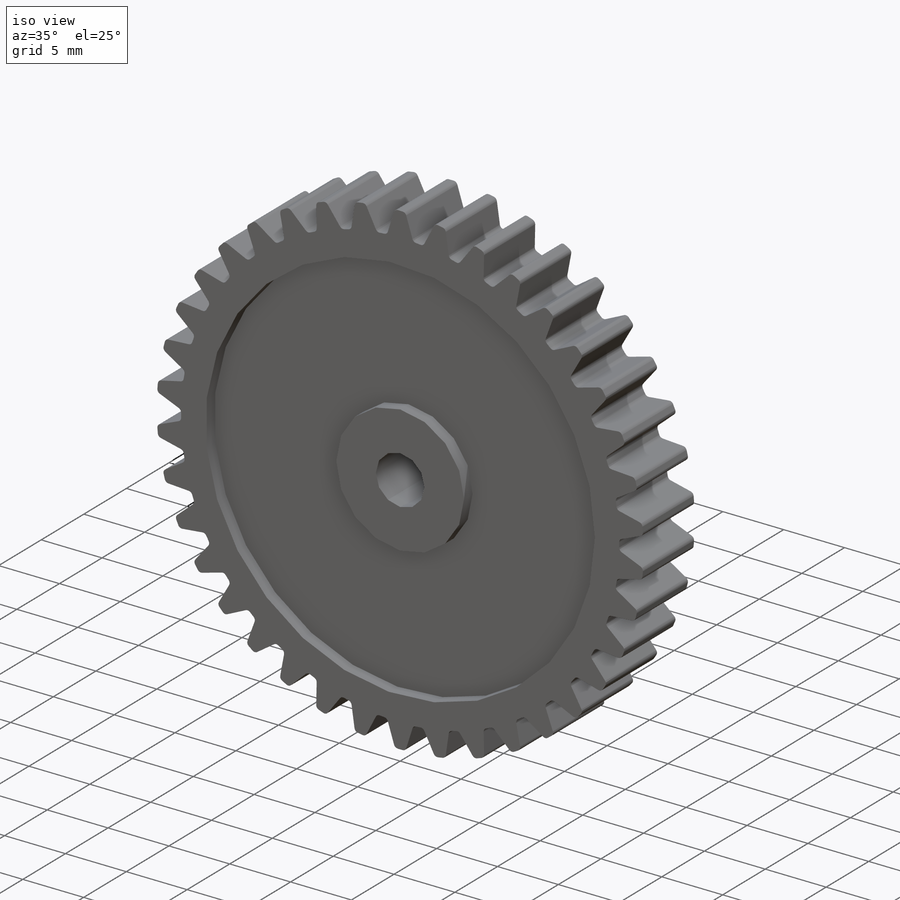
[diagram: iso view]
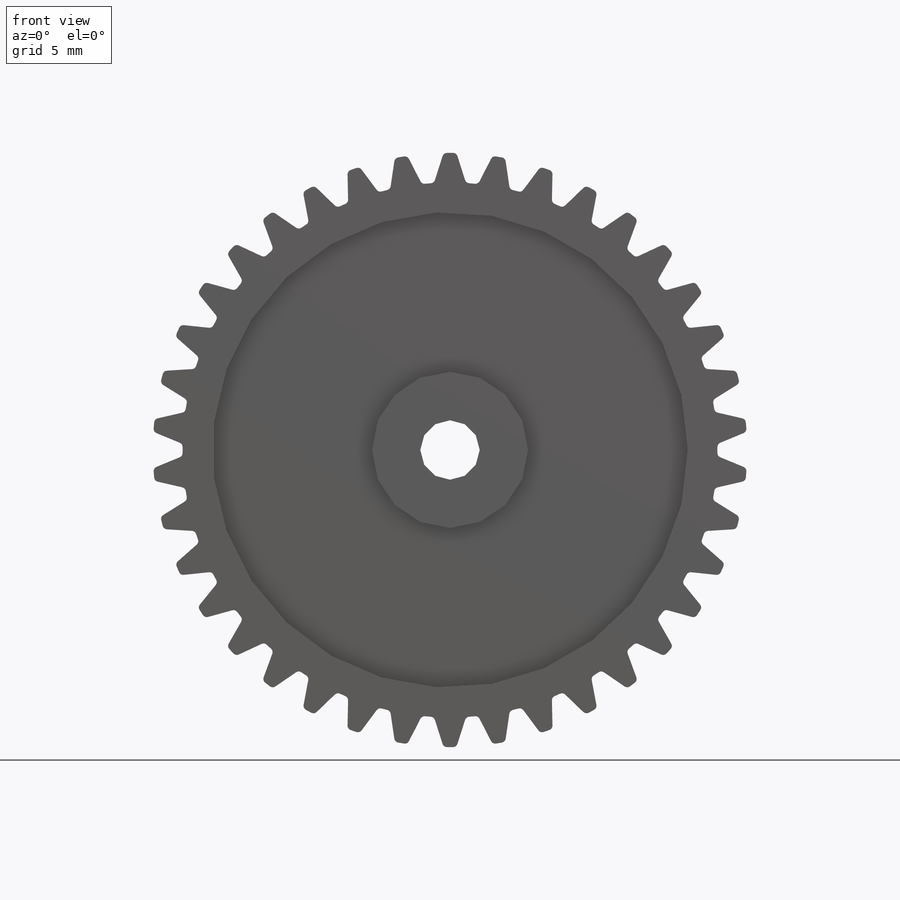
[diagram: front view]
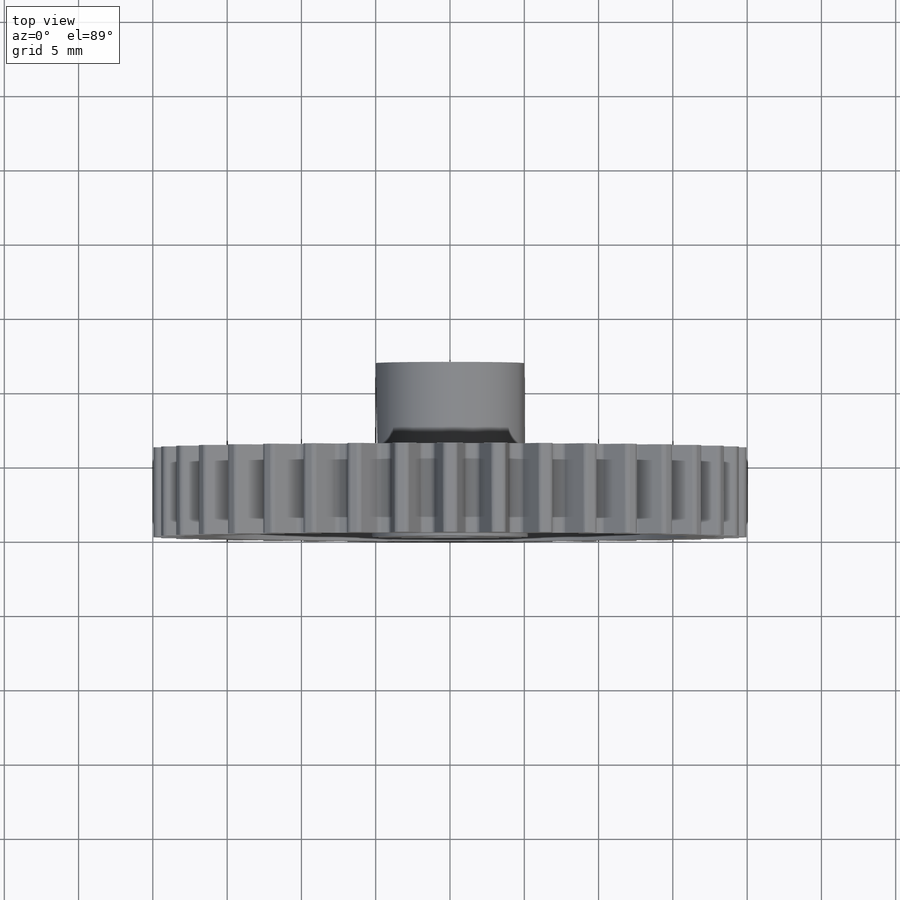
[diagram: top view]
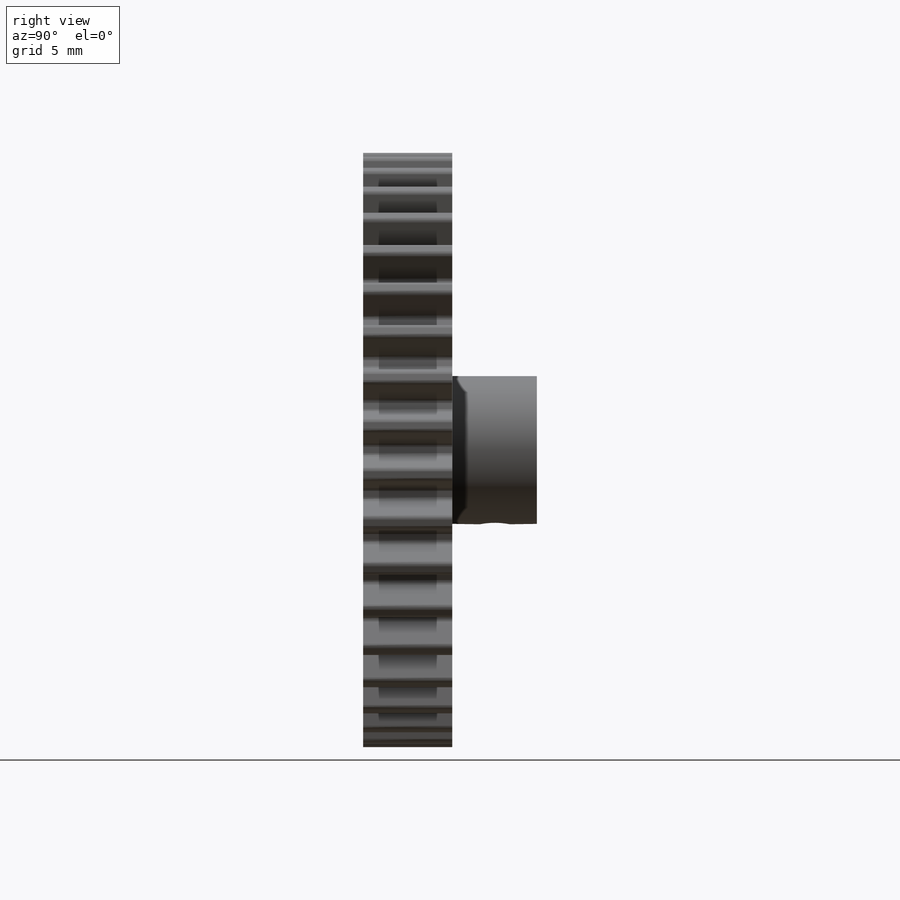
[diagram: right view]
SOLIDWORKS PART (.sldprt)
format: sldprt  version: not decoded by parser v0  size: 1,785,344 bytes
history: native  units: mm
features: sketch x8, extrude x4, cut_extrude x4, material x1, fillet x1, pattern_circular x1 + 1 further entry (+12 scaffold rows collapsed)
feature tree (32):
  scaffold x12  (default folders/planes/origin — collapsed)
  material  "Material <not specified>"
  "Design Table"
  sketch  "Sketch1"  dims[c1.D1=68.0mm c1.D2=~81.840153mm c2.D1=64.0mm c2.D3=~70.805423mm]
  extrude  "Body"  Depth=6mm
  sketch  "Sketch2"  dims[c1.D1=~104.061575mm c1.D2=~54.766887mm c2.D1=32.0mm c2.D2=32.0mm c3.D1=~5.277317mm c3.D2=4.314mm c4.D1=~5.277317mm c4.D2=~2.63241mm c5.D2=20.0deg c5.D3=~2.436743mm c6.D3=20.0deg]
  extrude  "Tooth"  Depth=6mm
  fillet  "Tooth Fillet"  Radius=0.3mm
  pattern_circular  "Tooth Pattern"  Angle=360deg  [1 undecoded]
  sketch  "Sketch3"  dims[D1=~14.700669mm D2=~43.495953mm]
  cut_extrude  "Resses1"  Depth=1mm
  sketch  "Sketch4"  dims[D1=~16.945109mm]
  cut_extrude  "Resses2"  Depth=1mm
  sketch  "Sketch5"  dims[D1=10.0mm]
  extrude  "Brass boss"  Depth=5.7mm
  sketch  "Sketch6"  dims[D1=4.0mm]
  cut_extrude  "Bore"  [1 undecoded]
  sketch  "Sketch7"  dims[D1=2.0mm]
  cut_extrude  "Grub screw"  [1 undecoded]
  sketch  "Sketch8"
  extrude  "Extrude1"  Depth=5mm
decode coverage: 15 of 18 modeling features carry decoded parameters; 1 rows unclassified (native names shown)
note: ~ marks probable driven/reference dimensions
note: 3 parameter values undecoded
note: suppression state not decoded; provenance and decode notes live in map.json
